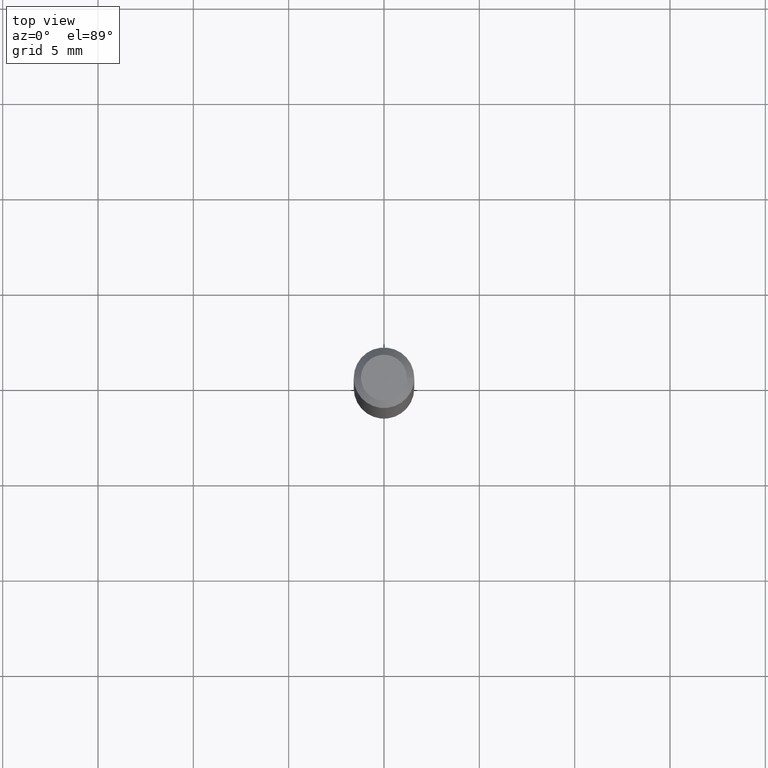
[diagram: clean part render]
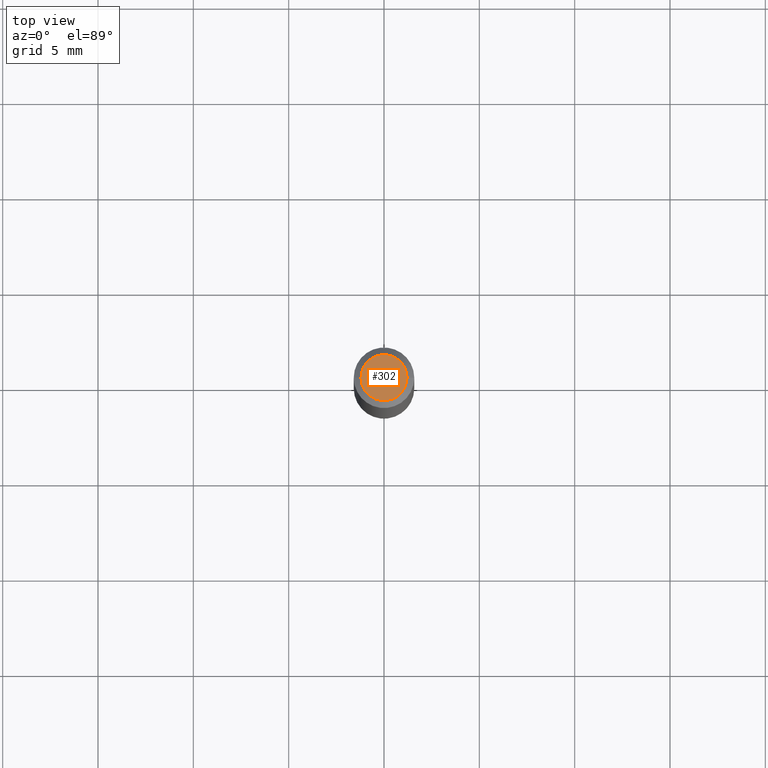
[diagram: same view with one face highlighted and labeled with its STEP entity id]
A machine part, top view. The second image highlights one B-rep face of the part: STEP entity #302.
In plain terms, the highlighted planar face has unit normal (0, -0, -1).
Its self-contained STEP definition (entity closure, byte-faithful):
#1 = CARTESIAN_POINT ( 'NONE',  ( -0.04749999999999999362, 3.578768372314200645E-16, -5.645421759935625219E-16 ) ) ;
#11 = DIRECTION ( 'NONE',  ( 1.000000000000000000, -6.982962677686267499E-15, 4.852736867747366768E-29 ) ) ;
#15 = CIRCLE ( 'NONE', #410, 0.04749999999999999362 ) ;
#18 = DIRECTION ( 'NONE',  ( 1.000000000000000000, -6.982962677686267499E-15, 4.852736867747366768E-29 ) ) ;
#19 = CARTESIAN_POINT ( 'NONE',  ( 0.04749999999999999362, -4.035134999187588484E-16, -5.645421759935574929E-16 ) ) ;
#40 = VERTEX_POINT ( 'NONE', #1 ) ;
#79 = EDGE_LOOP ( 'NONE', ( #96, #171 ) ) ;
#96 = ORIENTED_EDGE ( 'NONE', *, *, #140, .T. ) ;
#111 = AXIS2_PLACEMENT_3D ( 'NONE', #116, #437, #11 ) ;
#116 = CARTESIAN_POINT ( 'NONE',  ( 1.380570281168130538E-44, -1.971088472471417818E-30, -5.645421759935600567E-16 ) ) ;
#140 = EDGE_CURVE ( 'NONE', #40, #399, #15, .T. ) ;
#171 = ORIENTED_EDGE ( 'NONE', *, *, #223, .T. ) ;
#177 = AXIS2_PLACEMENT_3D ( 'NONE', #316, #344, #461 ) ;
#179 = PLANE ( 'NONE',  #177 ) ;
#180 = DIRECTION ( 'NONE',  ( -2.445468806185136597E-29, 3.491481338843145583E-15, 1.000000000000000000 ) ) ;
#212 = FACE_OUTER_BOUND ( 'NONE', #79, .T. ) ;
#218 = CARTESIAN_POINT ( 'NONE',  ( 1.380570281168130538E-44, -1.971088472471417818E-30, -5.645421759935600567E-16 ) ) ;
#223 = EDGE_CURVE ( 'NONE', #399, #40, #282, .T. ) ;
#282 = CIRCLE ( 'NONE', #111, 0.04749999999999999362 ) ;
#302 = ADVANCED_FACE ( 'NONE', ( #212 ), #179, .F. ) ;
#316 = CARTESIAN_POINT ( 'NONE',  ( 3.316907271900976096E-16, 0.04749999999999999362, -4.481164515918294248E-16 ) ) ;
#344 = DIRECTION ( 'NONE',  ( 2.438088387897960049E-29, -3.491481338843145188E-15, -1.000000000000000000 ) ) ;
#399 = VERTEX_POINT ( 'NONE', #19 ) ;
#410 = AXIS2_PLACEMENT_3D ( 'NONE', #218, #180, #18 ) ;
#437 = DIRECTION ( 'NONE',  ( -2.445468806185136597E-29, 3.491481338843145583E-15, 1.000000000000000000 ) ) ;
#461 = DIRECTION ( 'NONE',  ( -1.000000000000000000, 6.982962677686265922E-15, -4.876176775795935793E-29 ) ) ;